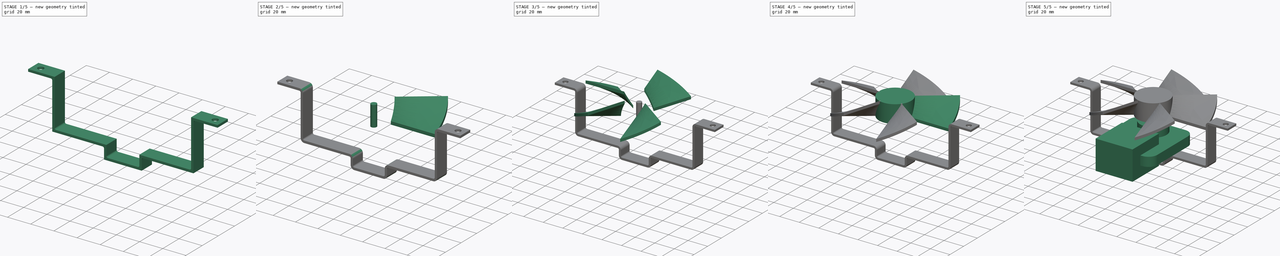
[diagram: build sequence overview — one tinted view per stage of 5, left to right]
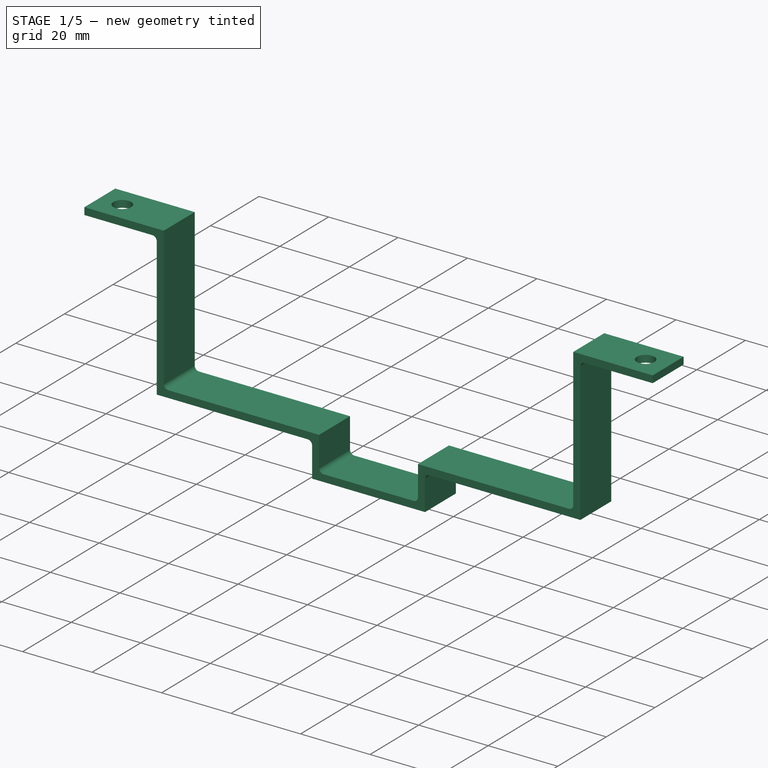
[diagram: stage 1 of 5 — iso view after this stage's code; geometry added in this stage tinted green]
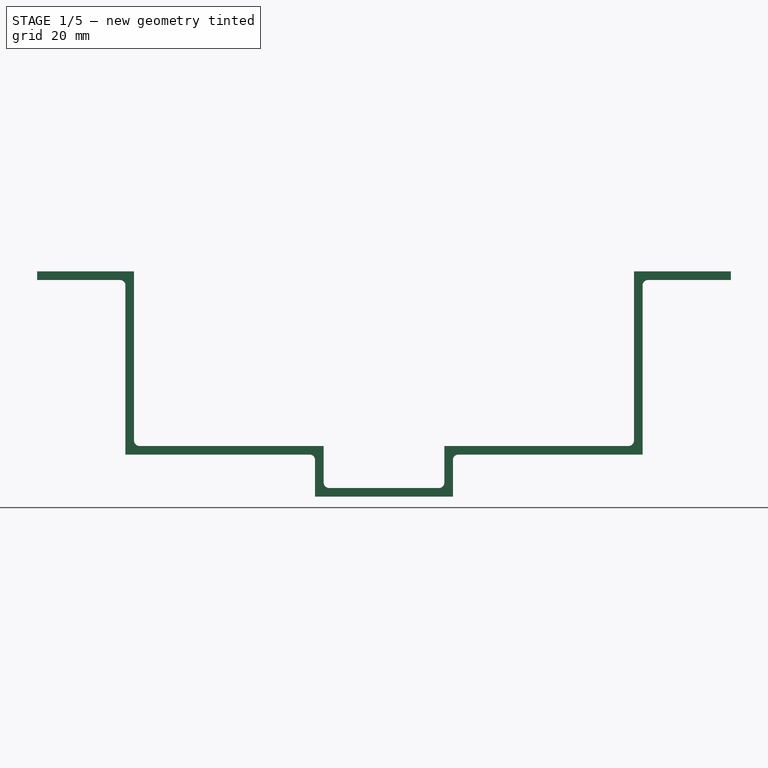
[diagram: stage 1 of 5 — front view after this stage's code; geometry added in this stage tinted green]
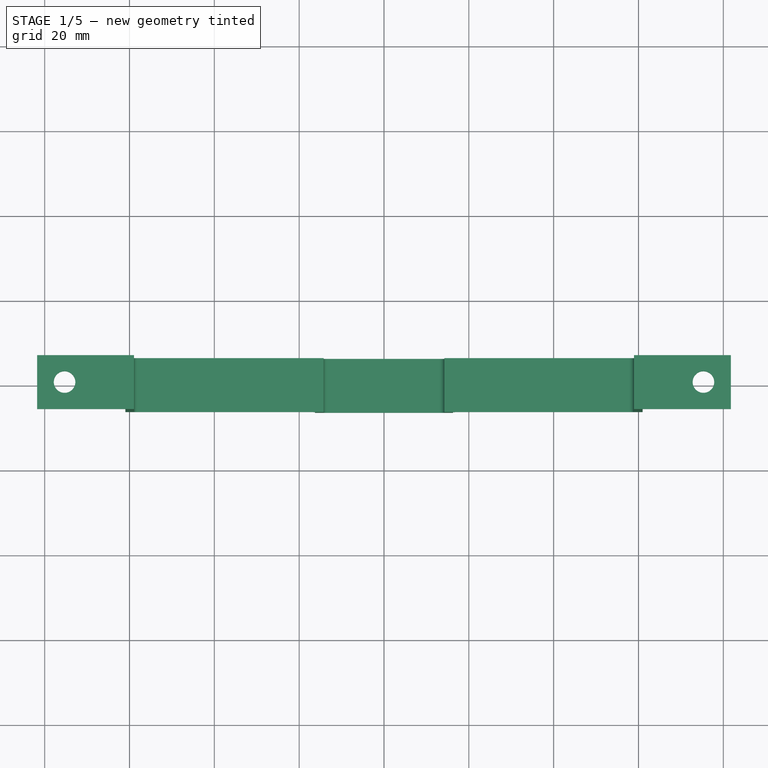
[diagram: stage 1 of 5 — top view after this stage's code; geometry added in this stage tinted green]
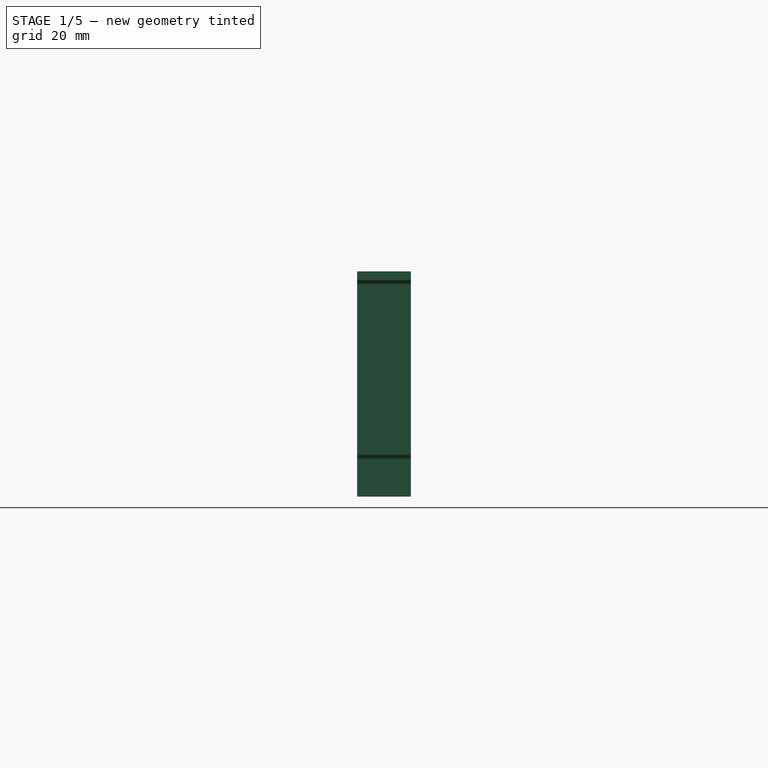
[diagram: stage 1 of 5 — right view after this stage's code; geometry added in this stage tinted green]
FCSTD DOCUMENT  (FreeCAD 0.15R4671 (Git))
Label: fan
License: All rights reserved
LicenseURL: http://en.wikipedia.org/wiki/All_rights_reserved
objects: Sketcher::SketchObject×5, Part::FeaturePython×5, Part::Fillet×3, Part::Cylinder×2, PartDesign::Pad×2, Part::MultiFuse×2, PartDesign::Pocket×2, Part::Box×1, Part::Helix×1, Part::Sweep×1
note: 28 computed .brp shape members not serialized (recipe doc carries the construction recipe); baked Part::Feature solids carry a one-line shape summary decoded from their .brp

FEATURE [Sketcher::SketchObject] Sketch002  label="fan-bracket-profile-sketch"
  Placement = pos=(0,0,0) rot=(-1,0,0;4.71239rad)
  sketch-geometry (23):
    g0: LineSegment StartX=-14.224 StartY=-39.878 StartZ=0 EndX=14.224 EndY=-39.878 EndZ=0
    g1: LineSegment StartX=14.224 StartY=-39.878 StartZ=0 EndX=14.224 EndY=-29.972 EndZ=0
    g2: LineSegment StartX=14.224 StartY=-29.972 StartZ=0 EndX=58.928 EndY=-29.972 EndZ=0
    g3: LineSegment StartX=58.928 StartY=-29.972 StartZ=0 EndX=58.928 EndY=11.176 EndZ=0
    g4: LineSegment StartX=58.928 StartY=11.176 StartZ=0 EndX=81.788 EndY=11.176 EndZ=0
    g5: LineSegment StartX=81.788 StartY=11.176 StartZ=0 EndX=81.788 EndY=9.144 EndZ=0
    g6: LineSegment StartX=81.788 StartY=9.144 StartZ=0 EndX=60.96 EndY=9.144 EndZ=0
    g7: LineSegment StartX=60.96 StartY=9.144 StartZ=0 EndX=60.96 EndY=-32.004 EndZ=0
    g8: LineSegment StartX=60.96 StartY=-32.004 StartZ=0 EndX=16.256 EndY=-32.004 EndZ=0
    g9: LineSegment StartX=16.256 StartY=-32.004 StartZ=0 EndX=16.256 EndY=-41.91 EndZ=0
    g10: LineSegment StartX=16.256 StartY=-41.91 StartZ=0 EndX=-16.256 EndY=-41.91 EndZ=0
    g11: LineSegment StartX=-16.256 StartY=-41.91 StartZ=0 EndX=-16.256 EndY=-32.004 EndZ=0
    g12: LineSegment StartX=-16.256 StartY=-32.004 StartZ=0 EndX=-60.96 EndY=-32.004 EndZ=0
    g13: LineSegment StartX=-60.96 StartY=-32.004 StartZ=0 EndX=-60.96 EndY=9.144 EndZ=0
    g14: LineSegment StartX=-60.96 StartY=9.144 StartZ=0 EndX=-81.788 EndY=9.144 EndZ=0
    g15: LineSegment StartX=-81.788 StartY=9.144 StartZ=0 EndX=-81.788 EndY=11.176 EndZ=0
    g16: LineSegment StartX=-81.788 StartY=11.176 StartZ=0 EndX=-58.928 EndY=11.176 EndZ=0
    g17: LineSegment StartX=-58.928 StartY=11.176 StartZ=0 EndX=-58.928 EndY=-29.972 EndZ=0
    g18: LineSegment StartX=-58.928 StartY=-29.972 StartZ=0 EndX=-14.224 EndY=-29.972 EndZ=0
    g19: LineSegment StartX=-14.224 StartY=-29.972 StartZ=0 EndX=-14.224 EndY=-39.878 EndZ=0
    g20: LineSegment [constr] StartX=-58.928 StartY=-29.972 StartZ=0 EndX=-60.96 EndY=-29.972 EndZ=0
    g21: LineSegment [constr] StartX=-58.928 StartY=-29.972 StartZ=0 EndX=-58.928 EndY=-32.004 EndZ=0
    g22: GeomPoint [constr] X=0 Y=-39.878 Z=0
  constraints (69):
    c: Horizontal(g0)
    c: Coincident(g0,g1)
    c: Vertical(g1)
    c: Coincident(g1,g2)
    c: Horizontal(g2)
    c: Coincident(g2,g3)
    c: Vertical(g3)
    c: Coincident(g3,g4)
    c: Horizontal(g4)
    c: Coincident(g4,g5)
    c: Vertical(g5)
    c: Coincident(g5,g6)
    c: Horizontal(g6)
    c: Coincident(g6,g7)
    c: Vertical(g7)
    c: Coincident(g7,g8)
    c: Horizontal(g8)
    c: Coincident(g8,g9)
    c: Vertical(g9)
    c: Coincident(g9,g10)
    c: Horizontal(g10)
    c: Coincident(g10,g11)
    c: Vertical(g11)
    c: Coincident(g11,g12)
    c: Horizontal(g12)
    c: Coincident(g12,g13)
    c: Vertical(g13)
    c: Coincident(g13,g14)
    c: Horizontal(g14)
    c: Coincident(g14,g15)
    c: Vertical(g15)
    c: Coincident(g15,g16)
    c: Horizontal(g16)
    c: Coincident(g16,g17)
    c: Vertical(g17)
    c: Coincident(g17,g18)
    c: Horizontal(g18)
    c: Coincident(g18,g19)
    c: Coincident(g19,g0)
    c: Vertical(g19)
    c: Equal(g7,g3)
    c: Equal(g3,g17)
    c: Equal(g17,g13)
    c: Equal(g18,g12)
    c: Equal(g12,g8)
    c: Equal(g8,g2)
    c: Equal(g9,g1)
    c: Equal(g1,g19)
    c: Equal(g19,g11)
    c: Equal(g5,g15)
    c: Equal(g14,g6)
    c: Equal(g16,g4)
    c: DistanceX(g16) = 22.86
    c: DistanceY(g16,g12) = -43.18
    c: DistanceX(g12,g7) = 121.92
    c: DistanceY(g15) = 2.032
    c: Coincident(g20,g17)
    c: PointOnObject(g20,g13)
    c: Horizontal(g20)
    c: Coincident(g21,g17)
    c: PointOnObject(g21,g12)
    c: Vertical(g21)
    c: Equal(g21,g20)
    c: Equal(g20,g15)
    c: DistanceY(g-1,g10) = -41.91
    c: PointOnObject(g22,g-2)
    c: Symmetric(g0,g0,g22)
    c: DistanceY(g9) = -9.906
    c: DistanceX(g0) = 28.448
FEATURE [PartDesign::Pad] Pad001  label="fan-bracket-profile"
  Length = 6.35
  Length2 = 6.35
  Placement = pos=(0,0,0) rot=(-1,0,0;4.71239rad)
  Sketch = -> Sketch002
  Type = 4
FEATURE [Sketcher::SketchObject] Sketch003  label="fan-bracket-hole-1-sketch"
  ExternalGeometry = -> [Pad001]
  Placement = pos=(0,0,9.144) rot=(1,0,0;3.14159rad)
  Support = -> Pad001 [Face15]
  sketch-geometry (1):
    g0: Circle CenterX=-75.311 CenterY=0 CenterZ=0 NormalX=0 NormalY=0 NormalZ=1 Radius=2.54
  constraints (3):
    c: PointOnObject(g0,g-1)
    c: Radius(g0) = 2.54
    c: DistanceX(g0,g-3) = -6.477
FEATURE [PartDesign::Pocket] Pocket  label="fan-bracket-hole-1"
  Length = 4.99999
  Placement = pos=(0,0,0) rot=(-1,0,0;4.71239rad)
  Sketch = -> Sketch003
  Type = 0
FEATURE [Sketcher::SketchObject] Sketch004  label="fan-bracket-hole-1-sketch001"
  ExternalGeometry = -> [Pad001,Pocket]
  Placement = pos=(0,0,9.144) rot=(1,0,0;3.14159rad)
  Support = -> Pocket [Face11]
  sketch-geometry (1):
    g0: Circle CenterX=75.311 CenterY=0 CenterZ=0 NormalX=0 NormalY=0 NormalZ=1 Radius=2.54
  constraints (3):
    c: PointOnObject(g0,g-1)
    c: Radius(g0) = 2.54
    c: DistanceX(g-4,g0) = -6.477
FEATURE [PartDesign::Pocket] Pocket001  label="fan-bracket-angles"
  Length = 4.99999
  Placement = pos=(0,0,0) rot=(-1,0,0;4.71239rad)
  Sketch = -> Sketch004
  Type = 0
FEATURE [Part::Fillet] Fillet001  label="fan-bracket-fillet-1"
  Base = -> Pocket001
  Edges = 8 edges r=1.27: [Edge1,Edge2,Edge45,Edge46,Edge51,Edge54,Edge57,Edge59]
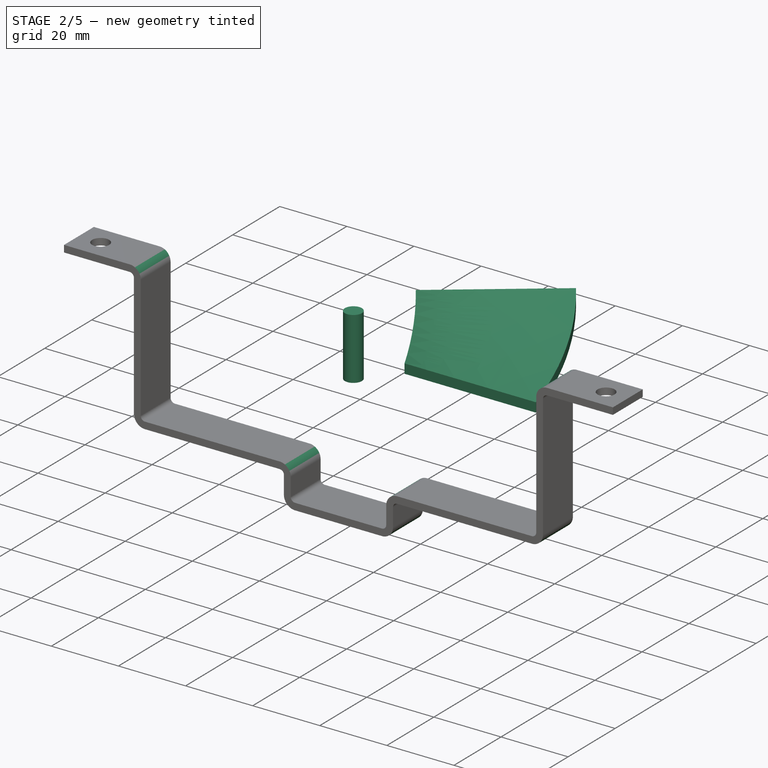
[diagram: stage 2 of 5 — iso view after this stage's code; geometry added in this stage tinted green]
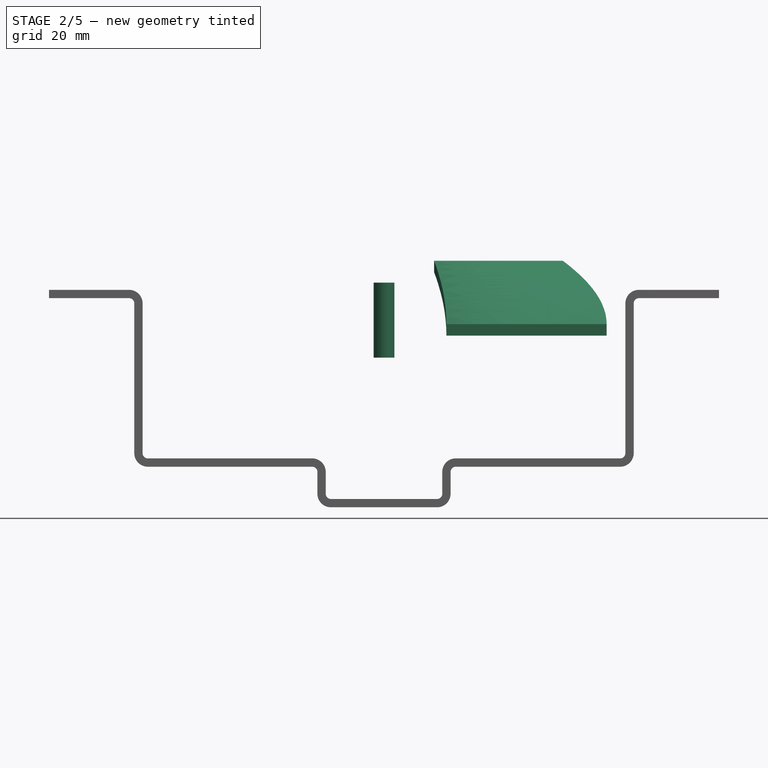
[diagram: stage 2 of 5 — front view after this stage's code; geometry added in this stage tinted green]
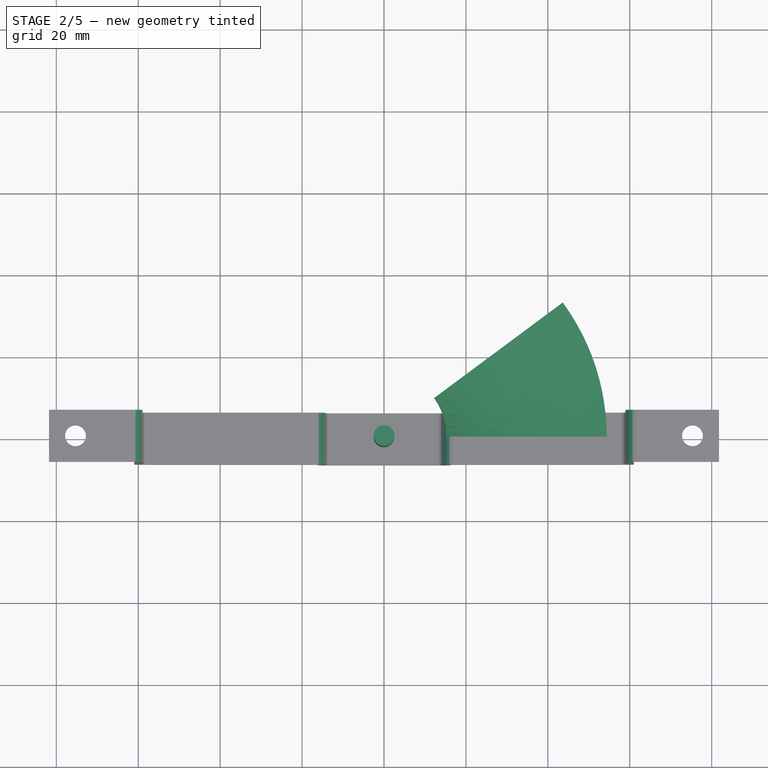
[diagram: stage 2 of 5 — top view after this stage's code; geometry added in this stage tinted green]
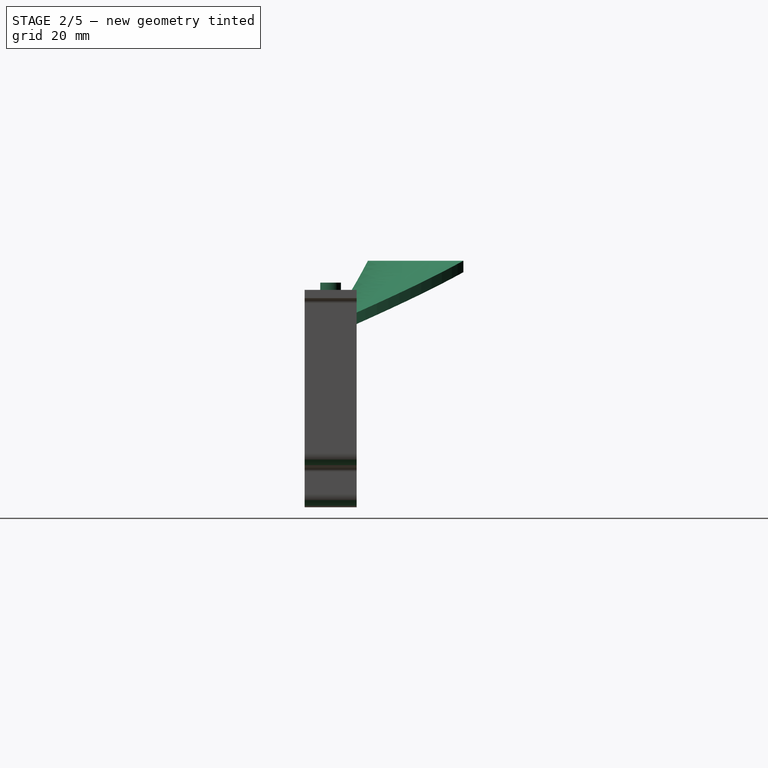
[diagram: stage 2 of 5 — right view after this stage's code; geometry added in this stage tinted green]
FEATURE [Part::Sweep] Sweep  label="fan-blade1-pattern"
  Frenet = true
  Sections = -> [Sketch001]
  Solid = true
  Spine = -> Helix001 [Edge1]
  Transition = 1
FEATURE [Part::Cylinder] Cylinder001  label="fan-spindle"
  Angle = 360
  Height = 18.288
  Placement = pos=(0,0,-5.3594) rot=(0,0,1;0rad)
  Radius = 2.54
FEATURE [Part::Fillet] Fillet002  label="fan-bracket"
  Base = -> Fillet001
  Edges = 8 edges r=3.3: [Edge61,Edge62,Edge67,Edge68,Edge81,Edge82,Edge87,Edge88]
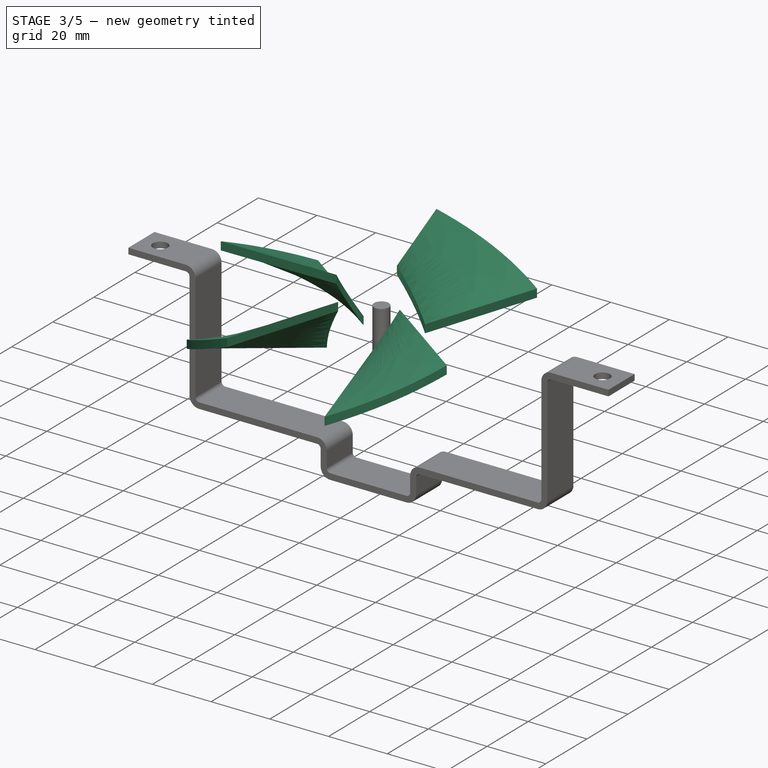
[diagram: stage 3 of 5 — iso view after this stage's code; geometry added in this stage tinted green]
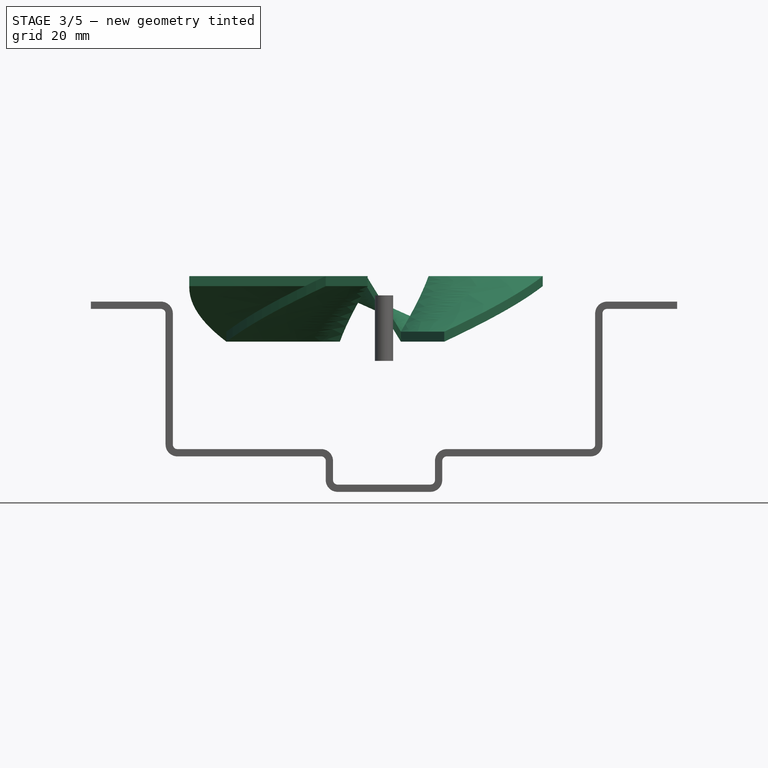
[diagram: stage 3 of 5 — front view after this stage's code; geometry added in this stage tinted green]
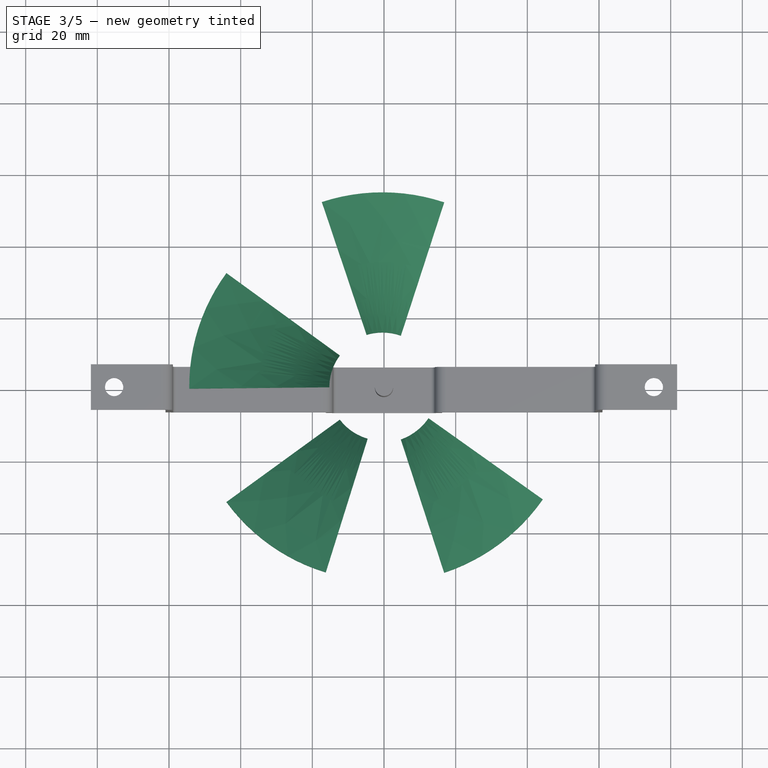
[diagram: stage 3 of 5 — top view after this stage's code; geometry added in this stage tinted green]
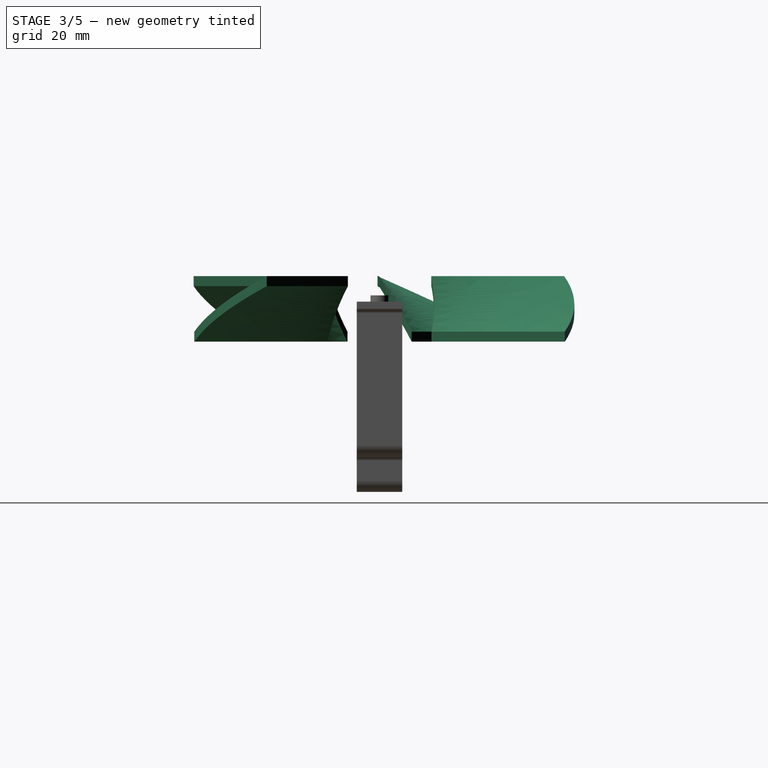
[diagram: stage 3 of 5 — right view after this stage's code; geometry added in this stage tinted green]
FEATURE [Part::FeaturePython] Clone001  label="fan-blade2"  # Draft clone (typed FeaturePython)
  Objects = -> [Sweep]
  Placement = pos=(0,0,0) rot=(0,0,1;1.25664rad)
  Scale = (1,1,1)
FEATURE [Part::FeaturePython] Clone002  label="fan-blade3"  # Draft clone (typed FeaturePython)
  Objects = -> [Sweep]
  Placement = pos=(0,0,0) rot=(0,0,1;2.51327rad)
  Scale = (1,1,1)
FEATURE [Part::FeaturePython] Clone003  label="fan-blade4"  # Draft clone (typed FeaturePython)
  Objects = -> [Sweep]
  Placement = pos=(0,0,0) rot=(0,0,-1;2.51327rad)
  Scale = (1,1,1)
FEATURE [Part::FeaturePython] Clone004  label="fan-blade5"  # Draft clone (typed FeaturePython)
  Objects = -> [Sweep]
  Placement = pos=(0,0,0) rot=(0,0,-1;1.25664rad)
  Scale = (1,1,1)
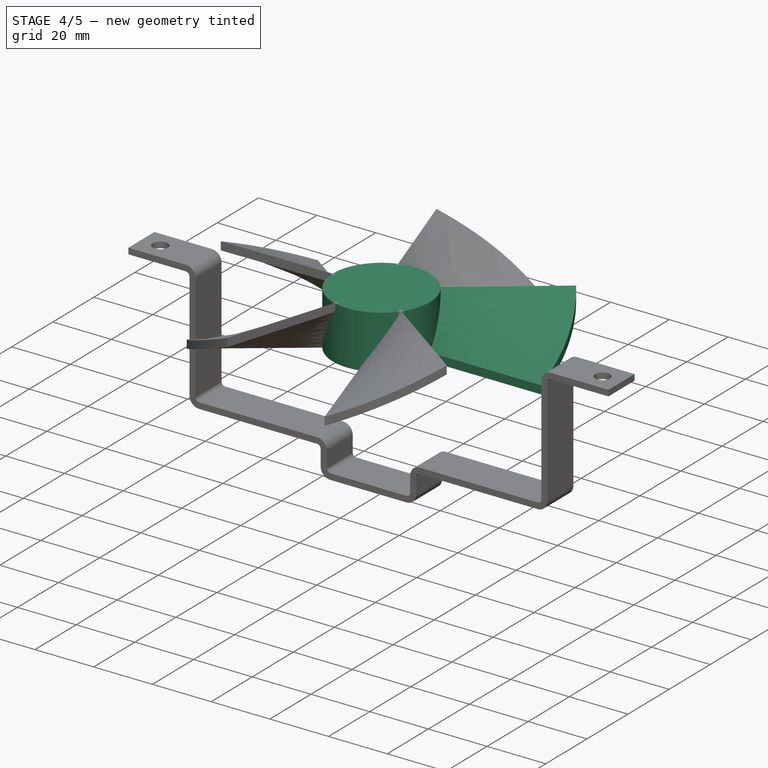
[diagram: stage 4 of 5 — iso view after this stage's code; geometry added in this stage tinted green]
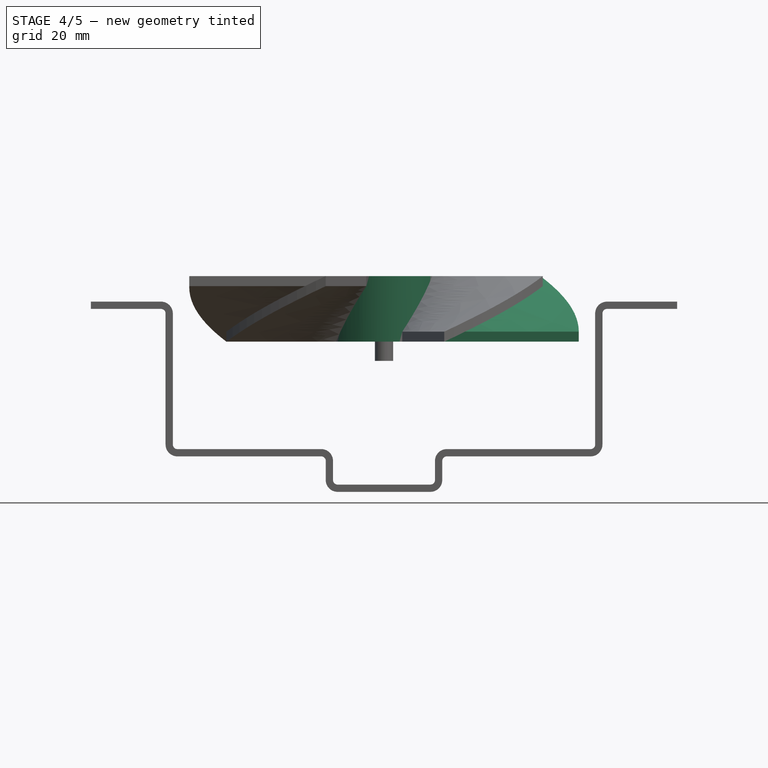
[diagram: stage 4 of 5 — front view after this stage's code; geometry added in this stage tinted green]
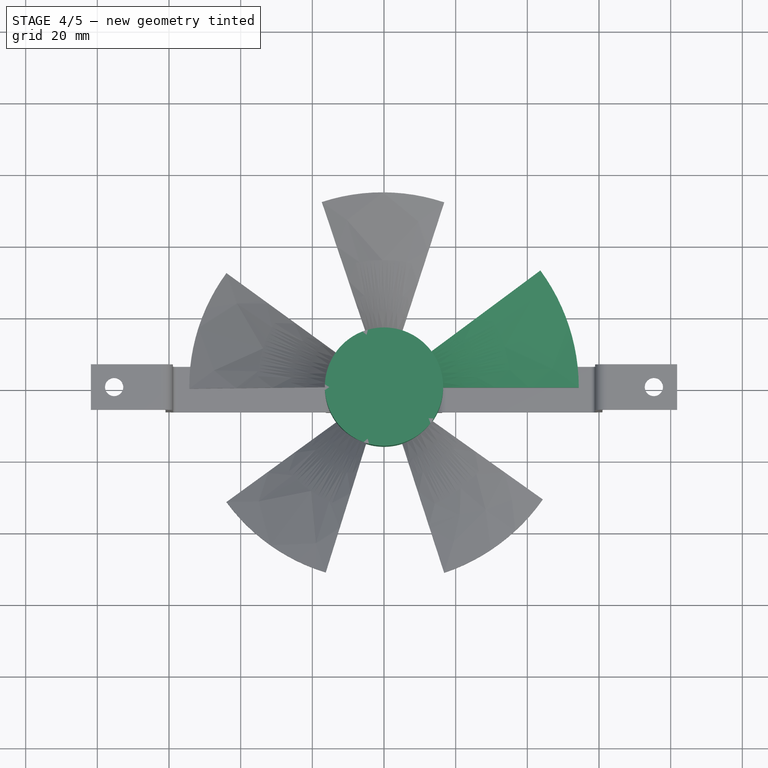
[diagram: stage 4 of 5 — top view after this stage's code; geometry added in this stage tinted green]
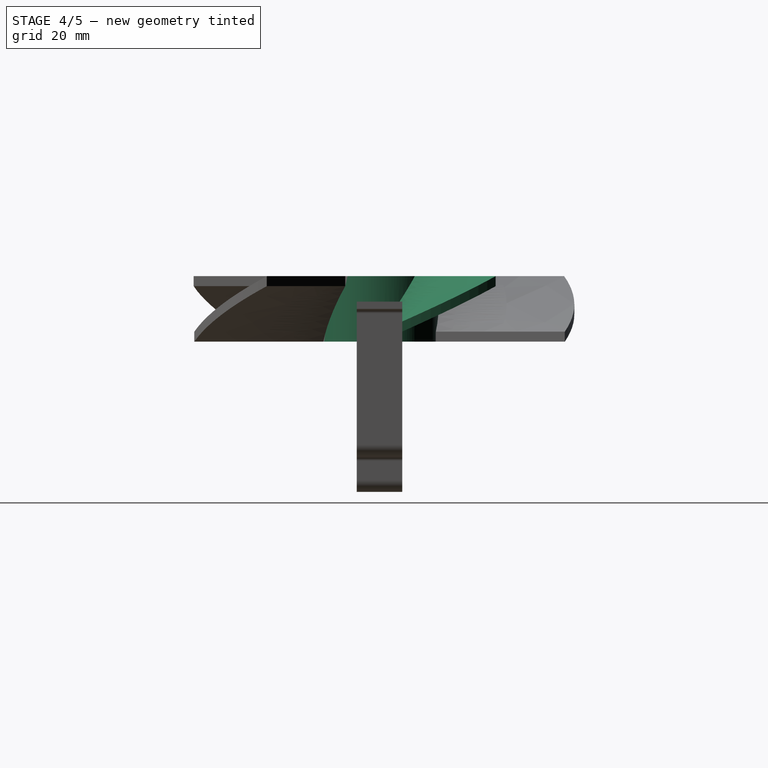
[diagram: stage 4 of 5 — right view after this stage's code; geometry added in this stage tinted green]
FEATURE [Part::Cylinder] Cylinder  label="fan-blade-center"
  Angle = 360
  Height = 18.288
  Radius = 16.51
FEATURE [Part::FeaturePython] Clone  label="fan-blade1"  # Draft clone (typed FeaturePython)
  Objects = -> [Sweep]
  Scale = (1,1,1)
FEATURE [Part::MultiFuse] Fusion  label="fan-blades"
  Shapes = -> [Cylinder001,Cylinder,Clone001,Clone003,Clone,Clone002,Clone004]
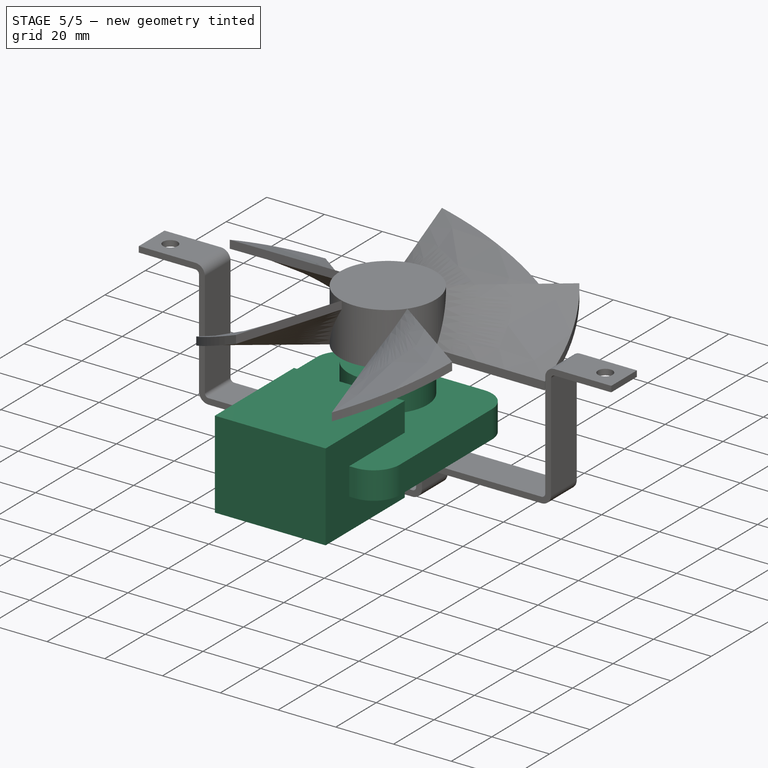
[diagram: stage 5 of 5 — iso view after this stage's code; geometry added in this stage tinted green]
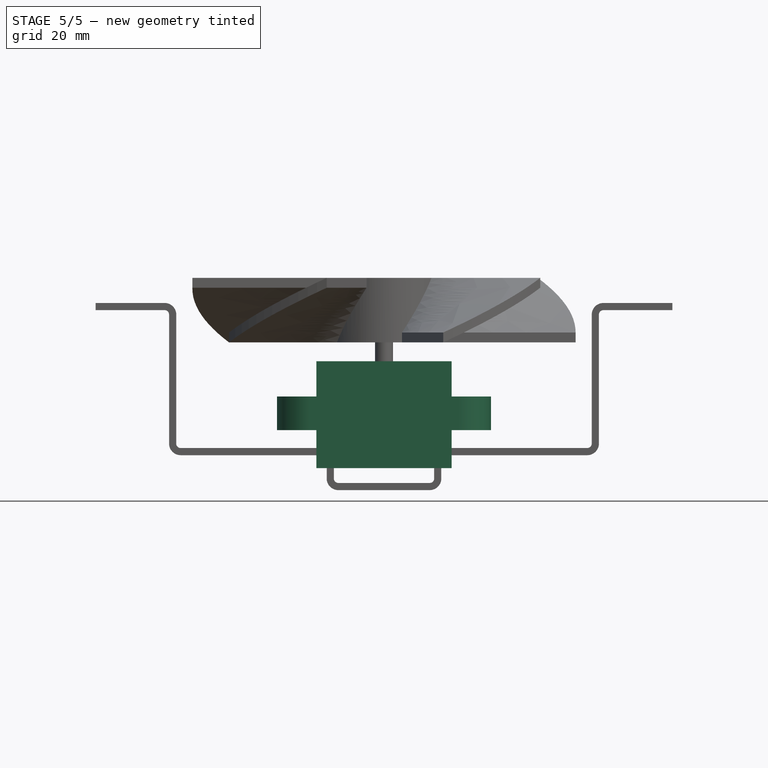
[diagram: stage 5 of 5 — front view after this stage's code; geometry added in this stage tinted green]
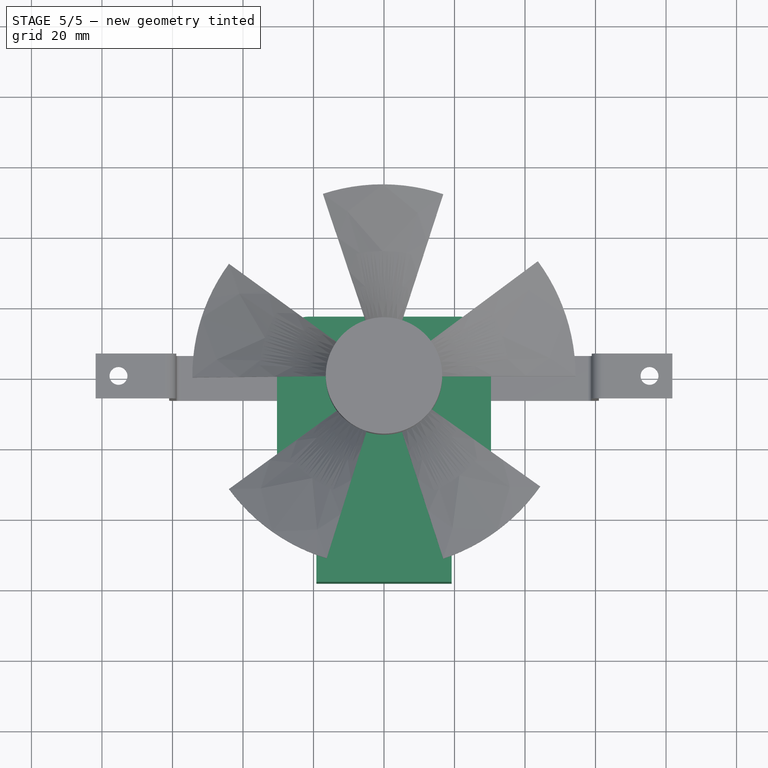
[diagram: stage 5 of 5 — top view after this stage's code; geometry added in this stage tinted green]
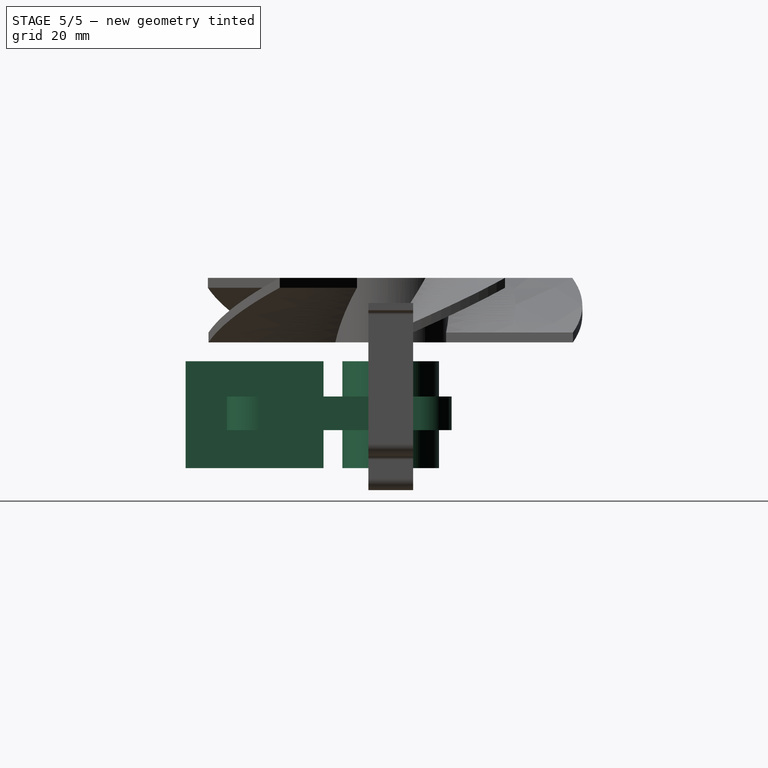
[diagram: stage 5 of 5 — right view after this stage's code; geometry added in this stage tinted green]
FEATURE [Part::Box] Box  label="fan-frame-cube"
  Height = 9.525
  Length = 60.706
  Placement = pos=(-30.353,-46.482,-24.892) rot=(0,0,1;0rad)
  Width = 63.754
FEATURE [Part::Helix] Helix001  label="fan-blade-helix"
  Angle = 0
  Height = 15.494
  LocalCoord = 0
  Pitch = 152.4
  Radius = 54.356
  Style = 1
FEATURE [Sketcher::SketchObject] Sketch001  label="fan-blade-profile-sketch"
  Placement = pos=(0,0,0) rot=(-1,0,0;4.71239rad)
  sketch-geometry (4):
    g0: LineSegment StartX=54.356 StartY=0 StartZ=0 EndX=15.24 EndY=0 EndZ=0
    g1: LineSegment StartX=15.24 StartY=0 StartZ=0 EndX=15.24 EndY=2.794 EndZ=0
    g2: LineSegment StartX=15.24 StartY=2.794 StartZ=0 EndX=54.356 EndY=2.794 EndZ=0
    g3: LineSegment StartX=54.356 StartY=2.794 StartZ=0 EndX=54.356 EndY=0 EndZ=0
  constraints (12):
    c: Coincident(g1,g2)
    c: Coincident(g2,g3)
    c: Coincident(g3,g0)
    c: Horizontal(g0)
    c: Vertical(g1)
    c: Vertical(g3)
    c: DistanceX(g0) = -39.116
    c: Horizontal(g2)
    c: DistanceY(g3) = -2.794
    c: Coincident(g0,g1)
    c: PointOnObject(g0,g-1)
    c: DistanceX(g-1,g0) = 15.24
FEATURE [Part::Fillet] Fillet  label="fan-frame"
  Base = -> Box
  Edges = 4 edges r=9.14: [Edge1,Edge3,Edge5,Edge7]
FEATURE [Sketcher::SketchObject] Sketch  label="fan-coil-spindle-sketch"
  ExternalGeometry = -> [Fillet]
  Placement = pos=(0,0,-15.367) rot=(0,0,1;0rad)
  Support = -> Fillet [Face2]
  sketch-geometry (7):
    g0: Circle CenterX=0 CenterY=0 CenterZ=0 NormalX=0 NormalY=0 NormalZ=1 Radius=13.716
    g1: LineSegment [constr] StartX=0 StartY=17.272 StartZ=0 EndX=0 EndY=0 EndZ=0
    g2: LineSegment StartX=-19.177 StartY=-19.05 StartZ=0 EndX=19.177 EndY=-19.05 EndZ=0
    g3: LineSegment StartX=19.177 StartY=-19.05 StartZ=0 EndX=19.177 EndY=-58.166 EndZ=0
    g4: LineSegment StartX=19.177 StartY=-58.166 StartZ=0 EndX=-19.177 EndY=-58.166 EndZ=0
    g5: LineSegment StartX=-19.177 StartY=-58.166 StartZ=0 EndX=-19.177 EndY=-19.05 EndZ=0
    g6: LineSegment [constr] StartX=0 StartY=-46.482 StartZ=0 EndX=0 EndY=-58.166 EndZ=0
  constraints (20):
    c: Radius(g0) = 13.716
    c: Coincident(g1,g0)
    c: Vertical(g1)
    c: DistanceY(g1) = -17.272
    c: Coincident(g2,g3)
    c: Coincident(g3,g4)
    c: Coincident(g4,g5)
    c: Coincident(g5,g2)
    c: Horizontal(g2)
    c: Horizontal(g4)
    c: Vertical(g3)
    c: Vertical(g5)
    c: DistanceX(g4) = -38.354
    c: DistanceY(g3) = -39.116
    c: PointOnObject(g6,g4)
    c: Vertical(g6)
    c: Symmetric(g4,g4,g6)
    c: DistanceY(g6) = -11.684
    c: Symmetric(g-4,g-4,g6)
    c: Symmetric(g-3,g-3,g1)
FEATURE [PartDesign::Pad] Pad  label="fan-body"
  Length = 10
  Length2 = 20.32
  Sketch = -> Sketch
  Type = 4
FEATURE [Part::MultiFuse] Fusion001  label="fan"
  Shapes = -> [Fillet002,Pad,Fusion]
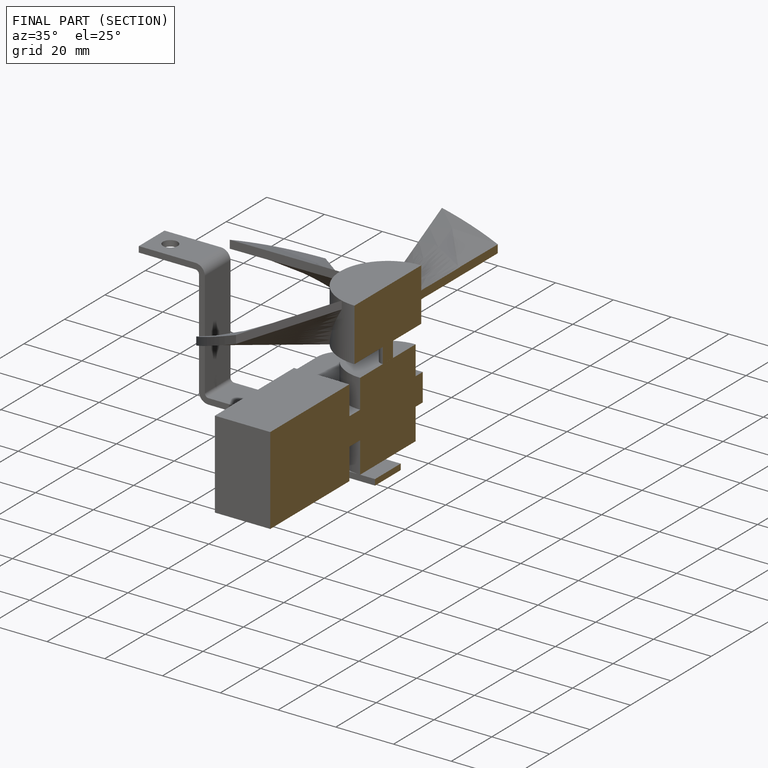
[diagram: finished part — half-section view (interior)]
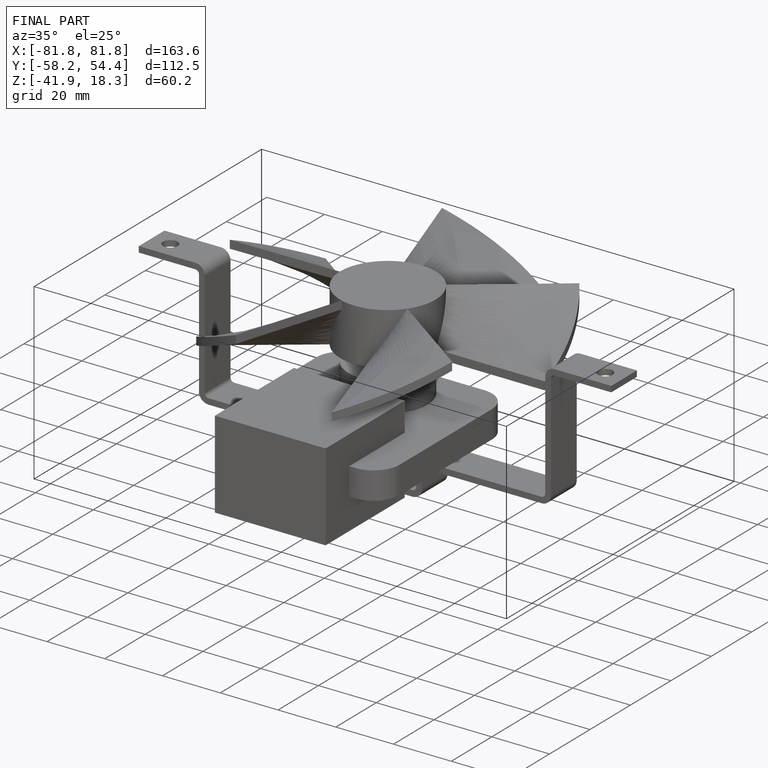
[diagram: finished part — iso view with bounding-box wireframe]
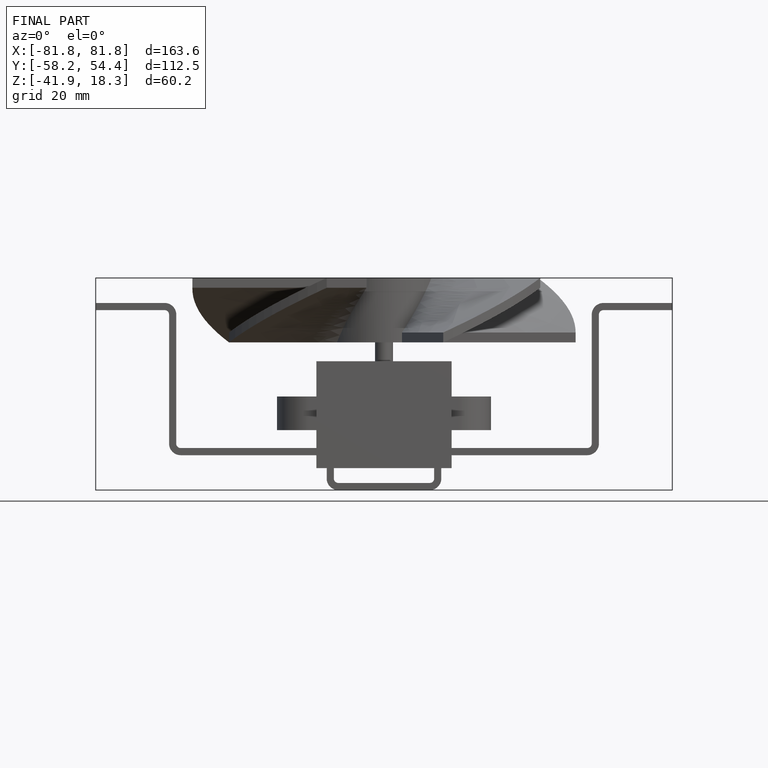
[diagram: finished part — front view with bounding-box wireframe]
